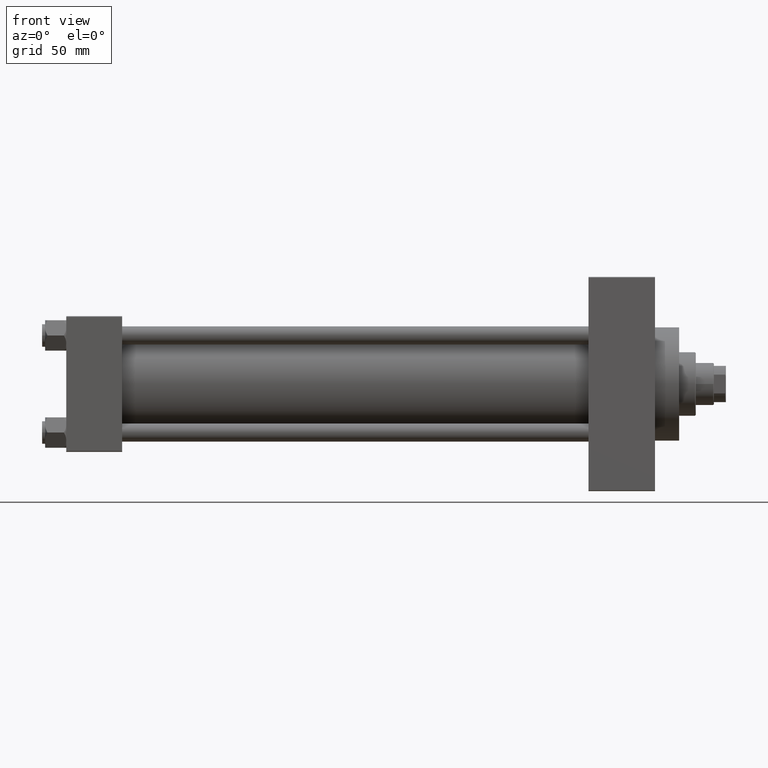
[diagram: clean part render]
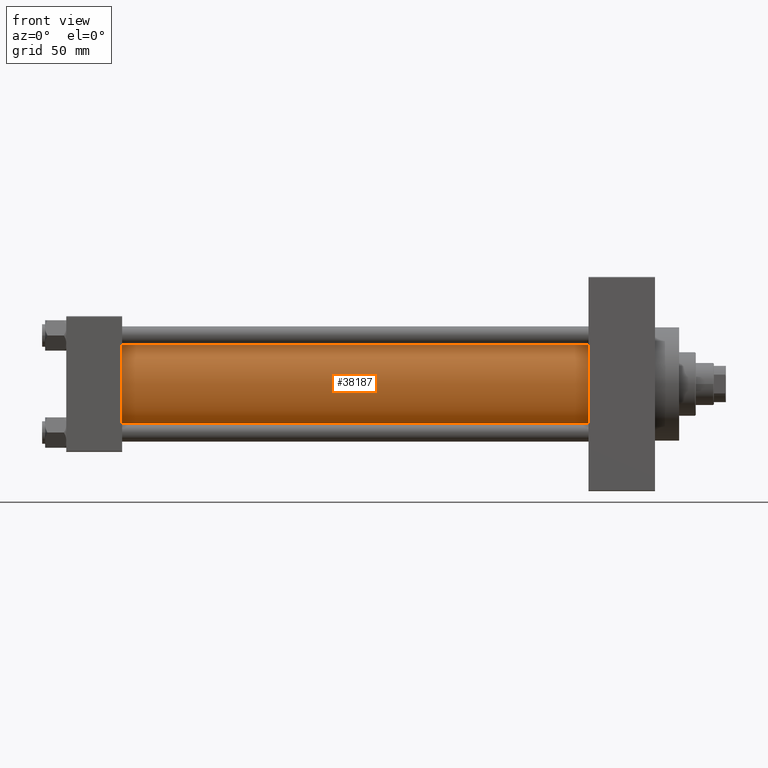
[diagram: same view with one face highlighted and labeled with its STEP entity id]
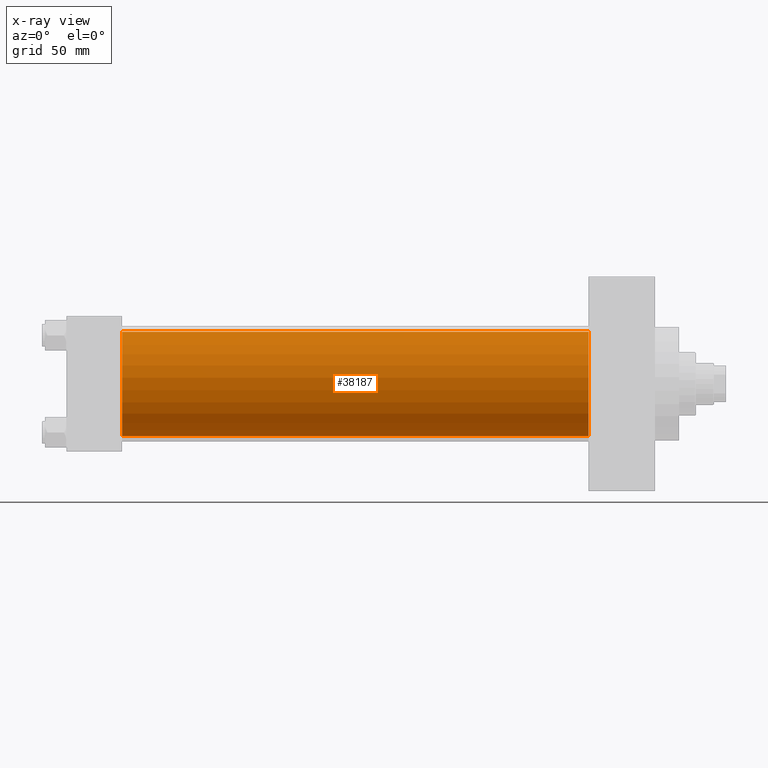
[diagram: x-ray of the same camera — body ghosted, the highlighted face saturated]
A machine part, front view. The second image highlights one B-rep face of the part: STEP entity #38187.
The next image is the same camera in x-ray: the body ghosted, the highlighted face saturated — about 0% of this face is hidden behind the body in this view.
In plain terms, the highlighted cylindrical surface (partial cylindrical patch) has radius 34.5 mm, axis along (-1, -0, -0).
Its self-contained STEP definition (entity closure, byte-faithful):
#961 = EDGE_LOOP ( 'NONE', ( #44662, #3653, #17927, #30093 ) ) ;
#2964 = CARTESIAN_POINT ( 'NONE',  ( 346.0000000000000000, 1.622946243093158675E-15, -34.50000000000000000 ) ) ;
#3653 = ORIENTED_EDGE ( 'NONE', *, *, #4340, .F. ) ;
#4340 = EDGE_CURVE ( 'NONE', #49036, #22345, #46920, .T. ) ;
#5684 = CARTESIAN_POINT ( 'NONE',  ( 346.0000000000000000, -2.602085213965210642E-15, 0.000000000000000000 ) ) ;
#6185 = DIRECTION ( 'NONE',  ( 1.000000000000000000, -0.000000000000000000, 0.000000000000000000 ) ) ;
#8460 = CYLINDRICAL_SURFACE ( 'NONE', #17008, 34.50000000000000000 ) ;
#9234 = CARTESIAN_POINT ( 'NONE',  ( 36.99999999999997868, 1.622946243093158675E-15, -34.50000000000000000 ) ) ;
#9461 = DIRECTION ( 'NONE',  ( 0.000000000000000000, 0.000000000000000000, -1.000000000000000000 ) ) ;
#9642 = EDGE_CURVE ( 'NONE', #24127, #21312, #47133, .T. ) ;
#16537 = LINE ( 'NONE', #35238, #39112 ) ;
#17008 = AXIS2_PLACEMENT_3D ( 'NONE', #5684, #20409, #20899 ) ;
#17496 = AXIS2_PLACEMENT_3D ( 'NONE', #39617, #28391, #9461 ) ;
#17927 = ORIENTED_EDGE ( 'NONE', *, *, #29106, .T. ) ;
#18164 = DIRECTION ( 'NONE',  ( -1.000000000000000000, -0.000000000000000000, -0.000000000000000000 ) ) ;
#19402 = CARTESIAN_POINT ( 'NONE',  ( 36.99999999999997868, -2.602085213965210642E-15, 34.50000000000000000 ) ) ;
#20409 = DIRECTION ( 'NONE',  ( -1.000000000000000000, -0.000000000000000000, -0.000000000000000000 ) ) ;
#20843 = AXIS2_PLACEMENT_3D ( 'NONE', #37337, #6185, #48059 ) ;
#20899 = DIRECTION ( 'NONE',  ( 0.000000000000000000, 0.000000000000000000, 1.000000000000000000 ) ) ;
#21312 = VERTEX_POINT ( 'NONE', #9234 ) ;
#22345 = VERTEX_POINT ( 'NONE', #35602 ) ;
#24028 = EDGE_CURVE ( 'NONE', #22345, #21312, #37124, .T. ) ;
#24127 = VERTEX_POINT ( 'NONE', #19402 ) ;
#27510 = DIRECTION ( 'NONE',  ( -1.000000000000000000, -0.000000000000000000, -0.000000000000000000 ) ) ;
#28391 = DIRECTION ( 'NONE',  ( 1.000000000000000000, 0.000000000000000000, 0.000000000000000000 ) ) ;
#29106 = EDGE_CURVE ( 'NONE', #49036, #24127, #16537, .T. ) ;
#30093 = ORIENTED_EDGE ( 'NONE', *, *, #9642, .T. ) ;
#35238 = CARTESIAN_POINT ( 'NONE',  ( 346.0000000000000000, -2.602085213965210642E-15, 34.50000000000000000 ) ) ;
#35602 = CARTESIAN_POINT ( 'NONE',  ( 346.0000000000000000, 1.622946243093158675E-15, -34.50000000000000000 ) ) ;
#37124 = LINE ( 'NONE', #2964, #46090 ) ;
#37337 = CARTESIAN_POINT ( 'NONE',  ( 36.99999999999997868, -2.602085213965210642E-15, 0.000000000000000000 ) ) ;
#37880 = CARTESIAN_POINT ( 'NONE',  ( 346.0000000000000000, -2.602085213965210642E-15, 34.50000000000000000 ) ) ;
#38187 = ADVANCED_FACE ( 'NONE', ( #43565 ), #8460, .T. ) ;
#39112 = VECTOR ( 'NONE', #27510, 1000.000000000000000 ) ;
#39617 = CARTESIAN_POINT ( 'NONE',  ( 346.0000000000000000, -2.602085213965210642E-15, 0.000000000000000000 ) ) ;
#43565 = FACE_OUTER_BOUND ( 'NONE', #961, .T. ) ;
#44662 = ORIENTED_EDGE ( 'NONE', *, *, #24028, .F. ) ;
#46090 = VECTOR ( 'NONE', #18164, 1000.000000000000000 ) ;
#46920 = CIRCLE ( 'NONE', #17496, 34.50000000000000000 ) ;
#47133 = CIRCLE ( 'NONE', #20843, 34.50000000000000000 ) ;
#48059 = DIRECTION ( 'NONE',  ( 0.000000000000000000, 0.000000000000000000, 1.000000000000000000 ) ) ;
#49036 = VERTEX_POINT ( 'NONE', #37880 ) ;